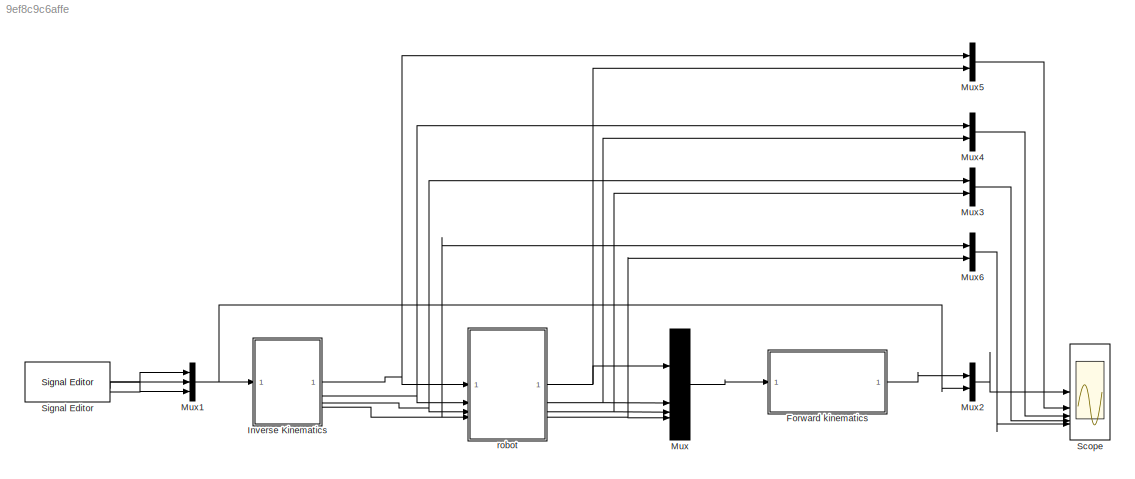
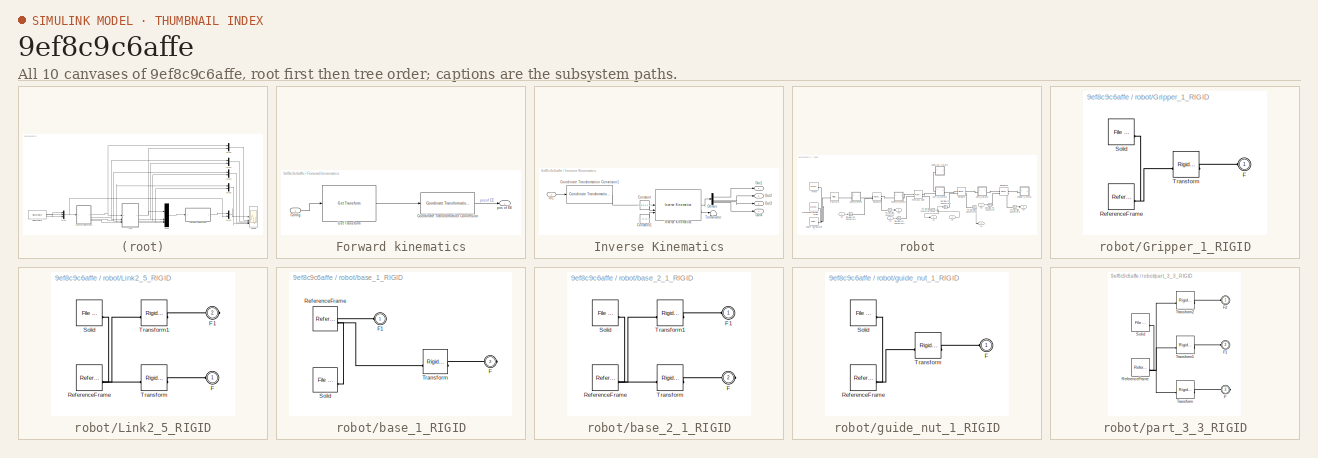
[diagram: thumbnail index - all 10 canvases of the model, root first then tree order]
MODEL slx_9ef8c9c6affe
KIND model
CONFIG AbsTol = auto
CONFIG EnableMultiTasking = off
CONFIG FixedStep = auto
CONFIG MaxStep = auto
CONFIG MinStep = auto
CONFIG RelTol = 1e-3
CONFIG SampleTimeConstraint = Unconstrained
CONFIG SolverName = VariableStepAuto
CONFIG StartTime = 0.0
CONFIG StopTime = 10.0
WORKSPACE source: external: MATLAB File  (data not in archive)
BLOCK [SubSystem] Forward kinematics
BLOCK [Inport] Forward kinematics/Config
BLOCK [Reference] Forward kinematics/Coordinate Transformation Conversion  REF=robotcorelib/Coordinate Transformation Conversion
  LibrarySourceBlock = robotutilslib/Coordinate Transformation Conversion
  SourceBlock = robotcorelib/Coordinate Transformation Conversion
  SourceType = robotics.slcore.internal.block.CoordinateTransformationConversion
BLOCK [Reference] Forward kinematics/Get Transform  REF=robotmaniplib/Get Transform
  SourceBlock = robotmaniplib/Get Transform
  SourceType = Get Transform
BLOCK [Outport] Forward kinematics/pos of EE
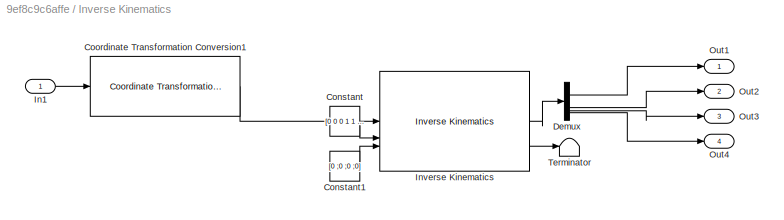
BLOCK [SubSystem] Inverse Kinematics
BLOCK [Constant] Inverse Kinematics/Constant
  Value = [0 0 0 1 1 1]
BLOCK [Constant] Inverse Kinematics/Constant1
  Value = [0 ;0 ;0 ;0]
BLOCK [Reference] Inverse Kinematics/Coordinate Transformation Conversion1  REF=robotcorelib/Coordinate Transformation Conversion
  LibrarySourceBlock = robotutilslib/Coordinate Transformation Conversion
  SourceBlock = robotcorelib/Coordinate Transformation Conversion
  SourceType = robotics.slcore.internal.block.CoordinateTransformationConversion
BLOCK [Demux] Inverse Kinematics/Demux
BLOCK [Inport] Inverse Kinematics/In1
BLOCK [Reference] Inverse Kinematics/Inverse Kinematics  REF=robotmaniplib/Inverse Kinematics
  SourceBlock = robotmaniplib/Inverse Kinematics
  SourceType = Inverse Kinematics
BLOCK [Outport] Inverse Kinematics/Out1
BLOCK [Outport] Inverse Kinematics/Out2
  Port = 2
BLOCK [Outport] Inverse Kinematics/Out3
  Port = 3
BLOCK [Outport] Inverse Kinematics/Out4
  Port = 4
BLOCK [Terminator] Inverse Kinematics/Terminator
BLOCK [Mux] Mux
  DisplayOption = bar
BLOCK [Mux] Mux1
  DisplayOption = bar
  Inputs = 3
BLOCK [Mux] Mux2
  DisplayOption = bar
  Inputs = 2
BLOCK [Mux] Mux3
  DisplayOption = bar
  Inputs = 2
BLOCK [Mux] Mux4
  DisplayOption = bar
  Inputs = 2
BLOCK [Mux] Mux5
  DisplayOption = bar
  Inputs = 2
BLOCK [Mux] Mux6
  DisplayOption = bar
  Inputs = 2
BLOCK [Scope] Scope
  Floating = off
  NumInputPorts = 5
  ScopeSpecificationString = Simulink.scopes.TimeScopeBlockCfg('CurrentConfiguration', extmgr.ConfigurationSet(extmgr.Configuration('Core','General UI',true),extmgr.Configuration('Core','Source UI',true),extmgr.Configuration('Sources','WiredSimulink',true),extmgr.Configuration('Visuals','Time Domain',true,'SerializedDisplays',{struct('MinYLimReal','-0.11315','MaxYLimReal','0.55639','YLabelReal','','MinYLimMag','0.00000','MaxY...<+3699ch>
BLOCK [Reference] Signal Editor  REF=SignalEditorBlockLib/Signal Editor
  LibrarySourceBlock = simulink/Sources/Signal Editor
  SourceBlock = SignalEditorBlockLib/Signal Editor
  SourceType = SignalEditor
  UserDataPersistent = on
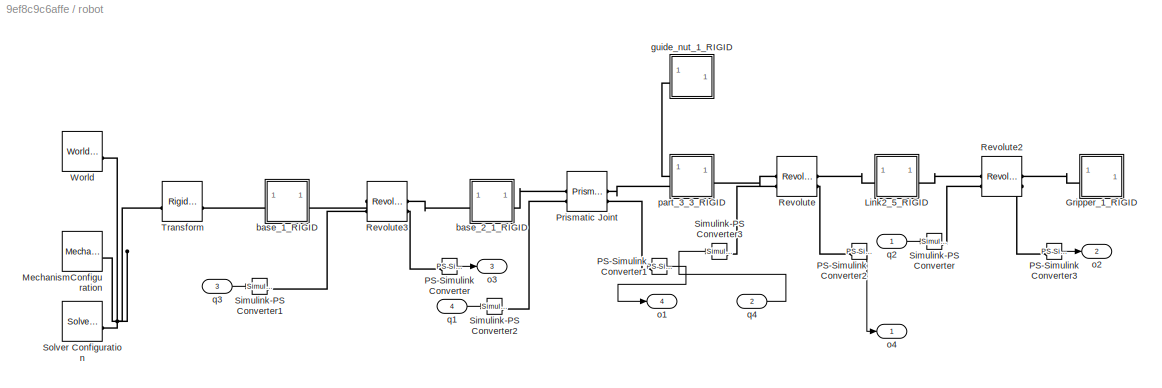
BLOCK [SubSystem] robot
BLOCK [SubSystem] robot/Gripper_1_RIGID
BLOCK [PMIOPort] robot/Gripper_1_RIGID/F
  Side = Left
BLOCK [Reference] robot/Gripper_1_RIGID/ReferenceFrame  REF=sm_lib/Frames and
Transforms/Reference
Frame
  SourceBlock = sm_lib/Frames and\nTransforms/Reference\nFrame
  SourceType = Reference\nFrame
BLOCK [Reference] robot/Gripper_1_RIGID/Solid  REF=sm_lib/Body Elements/File Solid
  SourceBlock = sm_lib/Body Elements/File Solid
  SourceType = File Solid
BLOCK [Reference] robot/Gripper_1_RIGID/Transform  REF=sm_lib/Frames and
Transforms/Rigid
Transform
  SourceBlock = sm_lib/Frames and\nTransforms/Rigid\nTransform
  SourceType = Rigid\nTransform
BLOCK [SubSystem] robot/Link2_5_RIGID
BLOCK [PMIOPort] robot/Link2_5_RIGID/F
  Side = Left
BLOCK [PMIOPort] robot/Link2_5_RIGID/F1
  Port = 2
  Side = Right
BLOCK [Reference] robot/Link2_5_RIGID/ReferenceFrame  REF=sm_lib/Frames and
Transforms/Reference
Frame
  SourceBlock = sm_lib/Frames and\nTransforms/Reference\nFrame
  SourceType = Reference\nFrame
BLOCK [Reference] robot/Link2_5_RIGID/Solid  REF=sm_lib/Body Elements/File Solid
  SourceBlock = sm_lib/Body Elements/File Solid
  SourceType = File Solid
BLOCK [Reference] robot/Link2_5_RIGID/Transform  REF=sm_lib/Frames and
Transforms/Rigid
Transform
  SourceBlock = sm_lib/Frames and\nTransforms/Rigid\nTransform
  SourceType = Rigid\nTransform
BLOCK [Reference] robot/Link2_5_RIGID/Transform1  REF=sm_lib/Frames and
Transforms/Rigid
Transform
  SourceBlock = sm_lib/Frames and\nTransforms/Rigid\nTransform
  SourceType = Rigid\nTransform
BLOCK [Reference] robot/MechanismConfiguration  REF=sm_lib/Utilities/Mechanism
Configuration
  SourceBlock = sm_lib/Utilities/Mechanism\nConfiguration
  SourceType = Mechanism\nConfiguration
BLOCK [Reference] robot/PS-Simulink Converter  REF=nesl_utility/PS-Simulink
Converter
  SourceBlock = nesl_utility/PS-Simulink\nConverter
  SourceType = PS-Simulink\nConverter
BLOCK [Reference] robot/PS-Simulink Converter1  REF=nesl_utility/PS-Simulink
Converter
  SourceBlock = nesl_utility/PS-Simulink\nConverter
  SourceType = PS-Simulink\nConverter
BLOCK [Reference] robot/PS-Simulink Converter2  REF=nesl_utility/PS-Simulink
Converter
  SourceBlock = nesl_utility/PS-Simulink\nConverter
  SourceType = PS-Simulink\nConverter
BLOCK [Reference] robot/PS-Simulink Converter3  REF=nesl_utility/PS-Simulink
Converter
  SourceBlock = nesl_utility/PS-Simulink\nConverter
  SourceType = PS-Simulink\nConverter
BLOCK [Reference] robot/Prismatic Joint  REF=sm_lib/Joints/Prismatic
Joint
  SourceBlock = sm_lib/Joints/Prismatic\nJoint
  SourceType = Prismatic\nJoint
BLOCK [Reference] robot/Revolute  REF=sm_lib/Joints/Revolute Joint
  SourceBlock = sm_lib/Joints/Revolute Joint
  SourceType = Revolute Joint
BLOCK [Reference] robot/Revolute2  REF=sm_lib/Joints/Revolute Joint
  SourceBlock = sm_lib/Joints/Revolute Joint
  SourceType = Revolute Joint
BLOCK [Reference] robot/Revolute3  REF=sm_lib/Joints/Revolute Joint
  SourceBlock = sm_lib/Joints/Revolute Joint
  SourceType = Revolute Joint
BLOCK [Reference] robot/Simulink-PS Converter  REF=nesl_utility/Simulink-PS
Converter
  SourceBlock = nesl_utility/Simulink-PS\nConverter
  SourceType = Simulink-PS\nConverter
BLOCK [Reference] robot/Simulink-PS Converter1  REF=nesl_utility/Simulink-PS
Converter
  SourceBlock = nesl_utility/Simulink-PS\nConverter
  SourceType = Simulink-PS\nConverter
BLOCK [Reference] robot/Simulink-PS Converter2  REF=nesl_utility/Simulink-PS
Converter
  SourceBlock = nesl_utility/Simulink-PS\nConverter
  SourceType = Simulink-PS\nConverter
BLOCK [Reference] robot/Simulink-PS Converter3  REF=nesl_utility/Simulink-PS
Converter
  SourceBlock = nesl_utility/Simulink-PS\nConverter
  SourceType = Simulink-PS\nConverter
BLOCK [Reference] robot/Solver Configuration  REF=nesl_utility/Solver
Configuration
  SourceBlock = nesl_utility/Solver\nConfiguration
  SourceType = Solver\nConfiguration
BLOCK [Reference] robot/Transform  REF=sm_lib/Frames and
Transforms/Rigid
Transform
  SourceBlock = sm_lib/Frames and\nTransforms/Rigid\nTransform
  SourceType = Rigid\nTransform
BLOCK [Reference] robot/World  REF=sm_lib/Frames and
Transforms/World Frame
  SourceBlock = sm_lib/Frames and\nTransforms/World Frame
  SourceType = World Frame
BLOCK [SubSystem] robot/base_1_RIGID
BLOCK [PMIOPort] robot/base_1_RIGID/F
  Port = 2
  Side = Right
BLOCK [PMIOPort] robot/base_1_RIGID/F1
  Side = Left
BLOCK [Reference] robot/base_1_RIGID/ReferenceFrame  REF=sm_lib/Frames and
Transforms/Reference
Frame
  SourceBlock = sm_lib/Frames and\nTransforms/Reference\nFrame
  SourceType = Reference\nFrame
BLOCK [Reference] robot/base_1_RIGID/Solid  REF=sm_lib/Body Elements/File Solid
  SourceBlock = sm_lib/Body Elements/File Solid
  SourceType = File Solid
BLOCK [Reference] robot/base_1_RIGID/Transform  REF=sm_lib/Frames and
Transforms/Rigid
Transform
  SourceBlock = sm_lib/Frames and\nTransforms/Rigid\nTransform
  SourceType = Rigid\nTransform
BLOCK [SubSystem] robot/base_2_1_RIGID
BLOCK [PMIOPort] robot/base_2_1_RIGID/F
  Port = 2
  Side = Right
BLOCK [PMIOPort] robot/base_2_1_RIGID/F1
  Side = Left
BLOCK [Reference] robot/base_2_1_RIGID/ReferenceFrame  REF=sm_lib/Frames and
Transforms/Reference
Frame
  SourceBlock = sm_lib/Frames and\nTransforms/Reference\nFrame
  SourceType = Reference\nFrame
BLOCK [Reference] robot/base_2_1_RIGID/Solid  REF=sm_lib/Body Elements/File Solid
  SourceBlock = sm_lib/Body Elements/File Solid
  SourceType = File Solid
BLOCK [Reference] robot/base_2_1_RIGID/Transform  REF=sm_lib/Frames and
Transforms/Rigid
Transform
  SourceBlock = sm_lib/Frames and\nTransforms/Rigid\nTransform
  SourceType = Rigid\nTransform
BLOCK [Reference] robot/base_2_1_RIGID/Transform1  REF=sm_lib/Frames and
Transforms/Rigid
Transform
  SourceBlock = sm_lib/Frames and\nTransforms/Rigid\nTransform
  SourceType = Rigid\nTransform
BLOCK [SubSystem] robot/guide_nut_1_RIGID
BLOCK [PMIOPort] robot/guide_nut_1_RIGID/F
  Side = Left
BLOCK [Reference] robot/guide_nut_1_RIGID/ReferenceFrame  REF=sm_lib/Frames and
Transforms/Reference
Frame
  SourceBlock = sm_lib/Frames and\nTransforms/Reference\nFrame
  SourceType = Reference\nFrame
BLOCK [Reference] robot/guide_nut_1_RIGID/Solid  REF=sm_lib/Body Elements/File Solid
  SourceBlock = sm_lib/Body Elements/File Solid
  SourceType = File Solid
BLOCK [Reference] robot/guide_nut_1_RIGID/Transform  REF=sm_lib/Frames and
Transforms/Rigid
Transform
  SourceBlock = sm_lib/Frames and\nTransforms/Rigid\nTransform
  SourceType = Rigid\nTransform
BLOCK [Outport] robot/o1
  Port = 4
BLOCK [Outport] robot/o2
  Port = 2
BLOCK [Outport] robot/o3
  Port = 3
BLOCK [Outport] robot/o4
BLOCK [SubSystem] robot/part_3_3_RIGID
BLOCK [PMIOPort] robot/part_3_3_RIGID/F
  Port = 3
  Side = Right
BLOCK [PMIOPort] robot/part_3_3_RIGID/F1
  Port = 2
  Side = Left
BLOCK [PMIOPort] robot/part_3_3_RIGID/F2
  Side = Left
BLOCK [Reference] robot/part_3_3_RIGID/ReferenceFrame  REF=sm_lib/Frames and
Transforms/Reference
Frame
  SourceBlock = sm_lib/Frames and\nTransforms/Reference\nFrame
  SourceType = Reference\nFrame
BLOCK [Reference] robot/part_3_3_RIGID/Solid  REF=sm_lib/Body Elements/File Solid
  SourceBlock = sm_lib/Body Elements/File Solid
  SourceType = File Solid
BLOCK [Reference] robot/part_3_3_RIGID/Transform  REF=sm_lib/Frames and
Transforms/Rigid
Transform
  SourceBlock = sm_lib/Frames and\nTransforms/Rigid\nTransform
  SourceType = Rigid\nTransform
BLOCK [Reference] robot/part_3_3_RIGID/Transform1  REF=sm_lib/Frames and
Transforms/Rigid
Transform
  SourceBlock = sm_lib/Frames and\nTransforms/Rigid\nTransform
  SourceType = Rigid\nTransform
BLOCK [Reference] robot/part_3_3_RIGID/Transform2  REF=sm_lib/Frames and
Transforms/Rigid
Transform
  SourceBlock = sm_lib/Frames and\nTransforms/Rigid\nTransform
  SourceType = Rigid\nTransform
BLOCK [Inport] robot/q1
  Port = 4
BLOCK [Inport] robot/q2
BLOCK [Inport] robot/q3
  Port = 3
BLOCK [Inport] robot/q4
  Port = 2
LINE Forward kinematics/Config:1 -> Forward kinematics/Get Transform:1
LINE Forward kinematics/Coordinate Transformation Conversion:1 -> Forward kinematics/pos of EE:1
LINE Forward kinematics/Get Transform:1 -> Forward kinematics/Coordinate Transformation Conversion:1
LINE Forward kinematics:1 -> Mux2:1
LINE Inverse Kinematics/Constant1:1 -> Inverse Kinematics/Inverse Kinematics:3
LINE Inverse Kinematics/Constant:1 -> Inverse Kinematics/Inverse Kinematics:2
LINE Inverse Kinematics/Coordinate Transformation Conversion1:1 -> Inverse Kinematics/Inverse Kinematics:1
LINE Inverse Kinematics/Demux:1 -> Inverse Kinematics/Out1:1
LINE Inverse Kinematics/Demux:2 -> Inverse Kinematics/Out2:1
LINE Inverse Kinematics/Demux:3 -> Inverse Kinematics/Out3:1
LINE Inverse Kinematics/Demux:4 -> Inverse Kinematics/Out4:1
LINE Inverse Kinematics/In1:1 -> Inverse Kinematics/Coordinate Transformation Conversion1:1
LINE Inverse Kinematics/Inverse Kinematics:1 -> Inverse Kinematics/Demux:1
LINE Inverse Kinematics/Inverse Kinematics:2 -> Inverse Kinematics/Terminator:1
NET Inverse Kinematics:1 -> Mux5:1, robot:1
NET Inverse Kinematics:2 -> Mux4:1, robot:2
NET Inverse Kinematics:3 -> Mux3:1, robot:3
NET Inverse Kinematics:4 -> Mux6:1, robot:4
NET Mux1:1 -> Inverse Kinematics:1, Mux2:2
LINE Mux2:1 -> Scope:1
LINE Mux3:1 -> Scope:4
LINE Mux4:1 -> Scope:3
LINE Mux5:1 -> Scope:2
LINE Mux6:1 -> Scope:5
LINE Mux:1 -> Forward kinematics:1
LINE Signal Editor:1 -> Mux1:1
LINE Signal Editor:2 -> Mux1:2
LINE Signal Editor:3 -> Mux1:3
LINE robot/PS-Simulink Converter1:1 -> robot/o1:1
LINE robot/PS-Simulink Converter2:1 -> robot/o4:1
LINE robot/PS-Simulink Converter3:1 -> robot/o2:1
LINE robot/PS-Simulink Converter:1 -> robot/o3:1
LINE robot/q1:1 -> robot/Simulink-PS Converter2:1
LINE robot/q2:1 -> robot/Simulink-PS Converter:1
LINE robot/q3:1 -> robot/Simulink-PS Converter1:1
LINE robot/q4:1 -> robot/Simulink-PS Converter3:1
NET robot:1 -> Mux5:2, Mux:1
NET robot:2 -> Mux4:2, Mux:2
NET robot:3 -> Mux3:2, Mux:3
NET robot:4 -> Mux6:2, Mux:4
PLINE robot/Gripper_1_RIGID/F:RConn1 -- robot/Gripper_1_RIGID/Transform:RConn1
PNET net1: robot/Gripper_1_RIGID/ReferenceFrame:RConn1 -- robot/Gripper_1_RIGID/Solid:RConn1 -- robot/Gripper_1_RIGID/Transform:LConn1
PLINE robot/Gripper_1_RIGID:LConn1 -- robot/Revolute2:RConn1
PLINE robot/Link2_5_RIGID/F1:RConn1 -- robot/Link2_5_RIGID/Transform1:RConn1
PLINE robot/Link2_5_RIGID/F:RConn1 -- robot/Link2_5_RIGID/Transform:RConn1
PNET net2: robot/Link2_5_RIGID/ReferenceFrame:RConn1 -- robot/Link2_5_RIGID/Solid:RConn1 -- robot/Link2_5_RIGID/Transform1:LConn1 -- robot/Link2_5_RIGID/Transform:LConn1
PLINE robot/Link2_5_RIGID:LConn1 -- robot/Revolute:RConn1
PLINE robot/Link2_5_RIGID:RConn1 -- robot/Revolute2:LConn1
PNET net3: robot/MechanismConfiguration:RConn1 -- robot/Solver Configuration:RConn1 -- robot/Transform:LConn1 -- robot/World:RConn1
PLINE robot/PS-Simulink Converter1:LConn1 -- robot/Prismatic Joint:RConn2
PLINE robot/PS-Simulink Converter2:LConn1 -- robot/Revolute:RConn2
PLINE robot/PS-Simulink Converter3:LConn1 -- robot/Revolute2:RConn2
PLINE robot/PS-Simulink Converter:LConn1 -- robot/Revolute3:RConn2
PLINE robot/Prismatic Joint:LConn1 -- robot/base_2_1_RIGID:RConn1
PLINE robot/Prismatic Joint:LConn2 -- robot/Simulink-PS Converter2:RConn1
PLINE robot/Prismatic Joint:RConn1 -- robot/part_3_3_RIGID:LConn2
PLINE robot/Revolute2:LConn2 -- robot/Simulink-PS Converter:RConn1
PLINE robot/Revolute3:LConn1 -- robot/base_1_RIGID:RConn1
PLINE robot/Revolute3:LConn2 -- robot/Simulink-PS Converter1:RConn1
PLINE robot/Revolute3:RConn1 -- robot/base_2_1_RIGID:LConn1
PLINE robot/Revolute:LConn1 -- robot/part_3_3_RIGID:RConn1
PLINE robot/Revolute:LConn2 -- robot/Simulink-PS Converter3:RConn1
PLINE robot/Transform:RConn1 -- robot/base_1_RIGID:LConn1
PNET net4: robot/base_1_RIGID/F1:RConn1 -- robot/base_1_RIGID/ReferenceFrame:RConn1 -- robot/base_1_RIGID/Solid:RConn1 -- robot/base_1_RIGID/Transform:LConn1
PLINE robot/base_1_RIGID/F:RConn1 -- robot/base_1_RIGID/Transform:RConn1
PLINE robot/base_2_1_RIGID/F1:RConn1 -- robot/base_2_1_RIGID/Transform1:RConn1
PLINE robot/base_2_1_RIGID/F:RConn1 -- robot/base_2_1_RIGID/Transform:RConn1
PNET net5: robot/base_2_1_RIGID/ReferenceFrame:RConn1 -- robot/base_2_1_RIGID/Solid:RConn1 -- robot/base_2_1_RIGID/Transform1:LConn1 -- robot/base_2_1_RIGID/Transform:LConn1
PLINE robot/guide_nut_1_RIGID/F:RConn1 -- robot/guide_nut_1_RIGID/Transform:RConn1
PNET net6: robot/guide_nut_1_RIGID/ReferenceFrame:RConn1 -- robot/guide_nut_1_RIGID/Solid:RConn1 -- robot/guide_nut_1_RIGID/Transform:LConn1
PLINE robot/guide_nut_1_RIGID:LConn1 -- robot/part_3_3_RIGID:LConn1
PLINE robot/part_3_3_RIGID/F1:RConn1 -- robot/part_3_3_RIGID/Transform1:RConn1
PLINE robot/part_3_3_RIGID/F2:RConn1 -- robot/part_3_3_RIGID/Transform2:RConn1
PLINE robot/part_3_3_RIGID/F:RConn1 -- robot/part_3_3_RIGID/Transform:RConn1
PNET net7: robot/part_3_3_RIGID/ReferenceFrame:RConn1 -- robot/part_3_3_RIGID/Solid:RConn1 -- robot/part_3_3_RIGID/Transform1:LConn1 -- robot/part_3_3_RIGID/Transform2:LConn1 -- robot/part_3_3_RIGID/Transform:LConn1
note: NET lines group one-source signal fan-out (src -> all destinations, sorted); 1:1 wires keep LINE; PNET lines group multi-terminal physical nets as a canonical sorted terminal list (undirected conserving connections); 2-terminal nets keep the pairwise PLINE form
